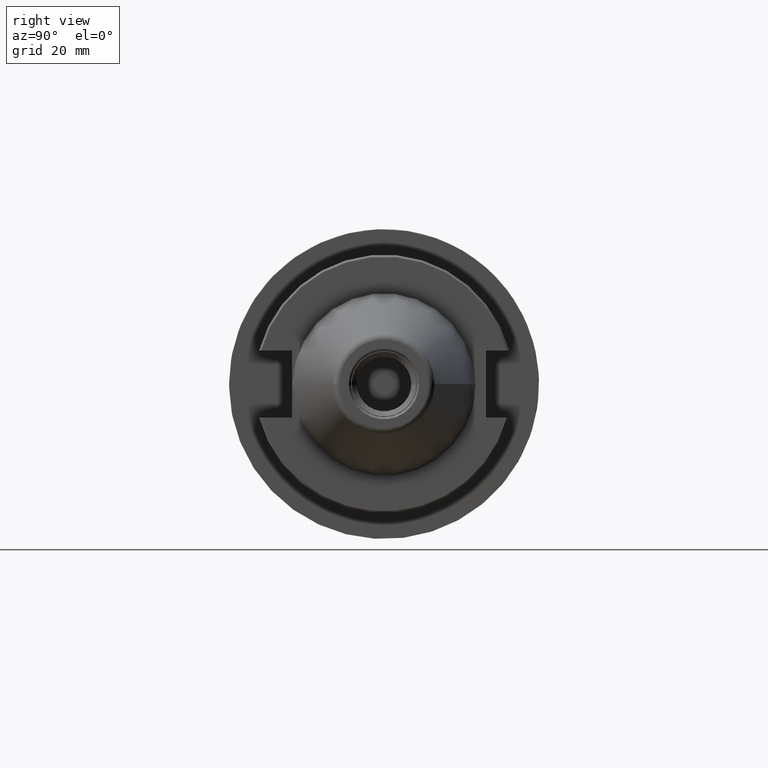
[diagram: clean part render]
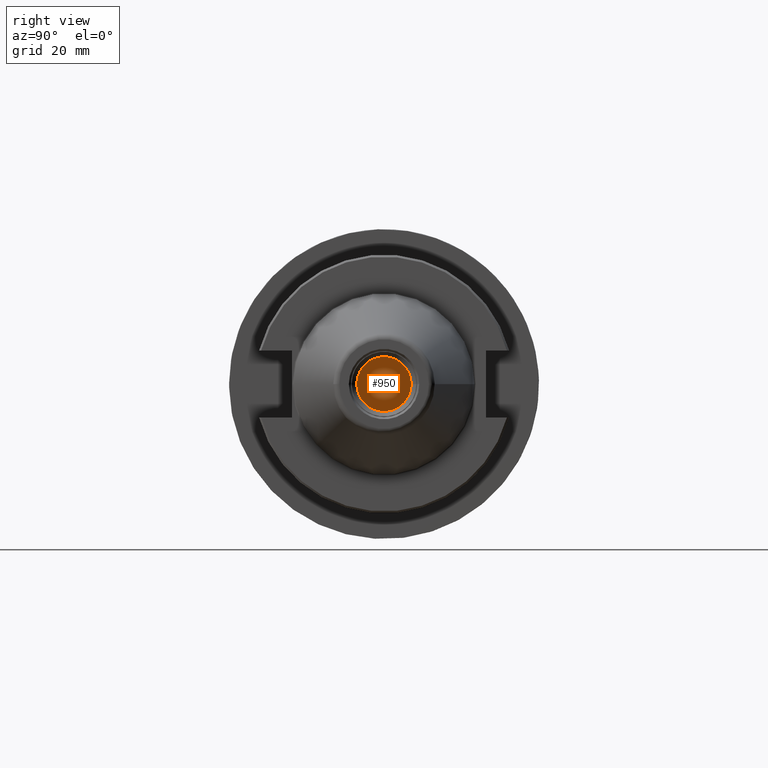
[diagram: same view with one face highlighted and labeled with its STEP entity id]
A machine part, right view. The second image highlights one B-rep face of the part: STEP entity #950.
In plain terms, the highlighted planar face has unit normal (-1, 0, 0).
Its self-contained STEP definition (entity closure, byte-faithful):
#103=CIRCLE('',#1085,6.688);
#163=FACE_OUTER_BOUND('',#227,.T.);
#227=EDGE_LOOP('',(#810));
#453=VERTEX_POINT('',#1788);
#576=EDGE_CURVE('',#453,#453,#103,.T.);
#810=ORIENTED_EDGE('',*,*,#576,.T.);
#903=PLANE('',#1086);
#950=ADVANCED_FACE('',(#163),#903,.F.);
#1085=AXIS2_PLACEMENT_3D('',#1789,#1335,#1336);
#1086=AXIS2_PLACEMENT_3D('',#1791,#1338,#1339);
#1335=DIRECTION('center_axis',(1.,0.,0.));
#1336=DIRECTION('ref_axis',(0.,1.,0.));
#1338=DIRECTION('center_axis',(-1.,0.,0.));
#1339=DIRECTION('ref_axis',(0.,-0.335646513186189,-0.941988013822869));
#1788=CARTESIAN_POINT('',(58.3,6.688,-1.450409687001E-14));
#1789=CARTESIAN_POINT('Origin',(58.3,0.,0.));
#1791=CARTESIAN_POINT('Origin',(58.3,-16.26729615509,52.66375103022));